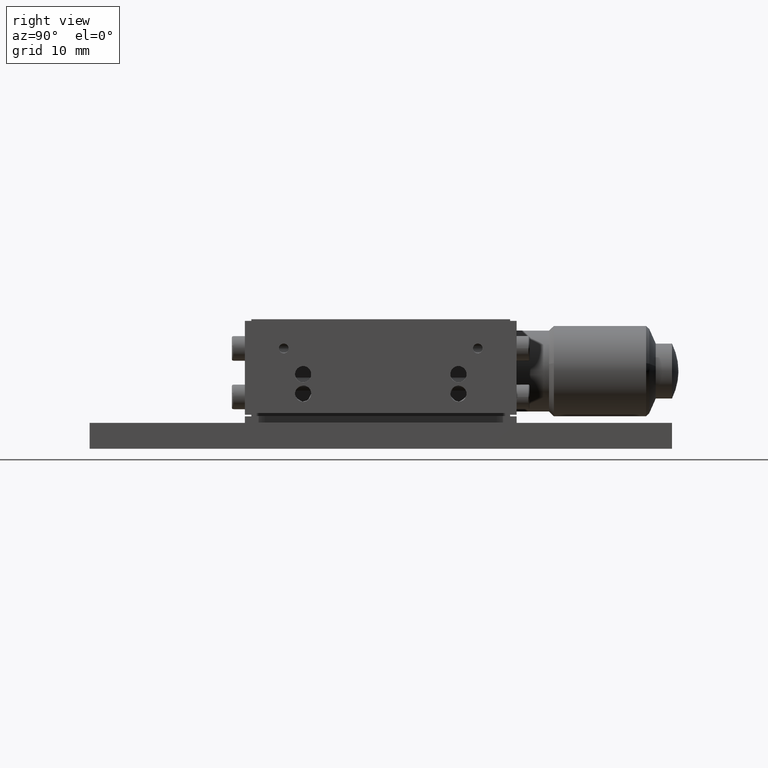
[diagram: clean part render]
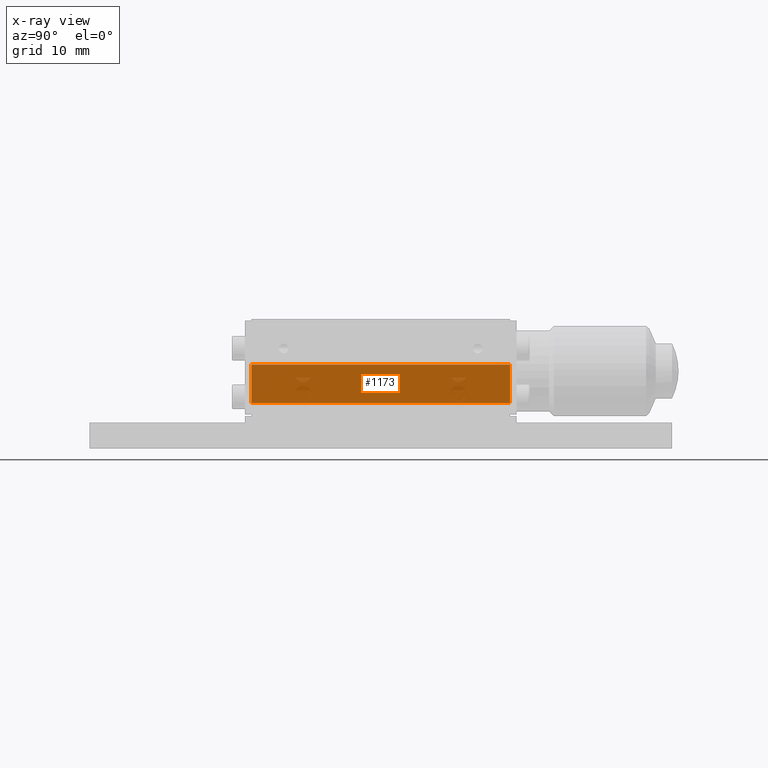
[diagram: x-ray — body ghosted, one internal face saturated and labeled with its STEP entity id]
A machine part, right view, then the same camera in x-ray: the body is ghosted and one INTERNAL B-rep face — a face not visible from any outside direction — is saturated and labeled: STEP entity #1173.
In plain terms, the highlighted face is a freeform B-spline surface patch.
Its self-contained STEP definition (entity closure, byte-faithful):
#329=B_SPLINE_SURFACE_WITH_KNOTS('',1,1,((#33617,#33618),(#33619,#33620)),
 .UNSPECIFIED.,.F.,.F.,.F.,(2,2),(2,2),(-3.52000000000002,0.320000000000002),
(-4.12,44.12),.UNSPECIFIED.);
#338=B_SPLINE_SURFACE_WITH_KNOTS('',1,1,((#34157,#34158),(#34159,#34160)),
 .UNSPECIFIED.,.F.,.F.,.F.,(2,2),(2,2),(-3.42000000000002,0.420000000000002),
(-4.12,44.12),.UNSPECIFIED.);
#339=B_SPLINE_SURFACE_WITH_KNOTS('',1,1,((#34161,#34162),(#34163,#34164)),
 .UNSPECIFIED.,.F.,.F.,.F.,(2,2),(2,2),(-24.12,24.12),(-3.72,3.72),
 .UNSPECIFIED.);
#347=B_SPLINE_SURFACE_WITH_KNOTS('',1,1,((#34193,#34194),(#34195,#34196)),
 .UNSPECIFIED.,.F.,.F.,.F.,(2,2),(2,2),(7.87999999999986,11.7199999999999),
(-3.97000000000008,3.46999999999994),.UNSPECIFIED.);
#378=B_SPLINE_SURFACE_WITH_KNOTS('',1,1,((#35129,#35130),(#35131,#35132)),
 .UNSPECIFIED.,.F.,.F.,.F.,(2,2),(2,2),(-11.72,-7.87999999999998),(-3.97,
3.47),.UNSPECIFIED.);
#1173=ADVANCED_FACE('',(#1794),#339,.T.);
#1794=FACE_OUTER_BOUND('',#2475,.T.);
#2475=EDGE_LOOP('',(#4847,#4848,#4849,#4850));
#4847=ORIENTED_EDGE('',*,*,#18967,.T.);
#4848=ORIENTED_EDGE('',*,*,#18872,.F.);
#4849=ORIENTED_EDGE('',*,*,#18968,.T.);
#4850=ORIENTED_EDGE('',*,*,#18964,.F.);
#7887=PCURVE('',#329,#11117);
#8073=PCURVE('',#338,#11303);
#8077=PCURVE('',#339,#11307);
#8078=PCURVE('',#339,#11308);
#8079=PCURVE('',#339,#11309);
#8080=PCURVE('',#339,#11310);
#8121=PCURVE('',#347,#11351);
#8568=PCURVE('',#378,#11798);
#11117=DEFINITIONAL_REPRESENTATION('',(#14614),#46496);
#11303=DEFINITIONAL_REPRESENTATION('',(#14847),#46496);
#11307=DEFINITIONAL_REPRESENTATION('',(#14854),#46496);
#11308=DEFINITIONAL_REPRESENTATION('',(#14855),#46496);
#11309=DEFINITIONAL_REPRESENTATION('',(#14857),#46496);
#11310=DEFINITIONAL_REPRESENTATION('',(#14858),#46496);
#11351=DEFINITIONAL_REPRESENTATION('',(#14889),#46496);
#11798=DEFINITIONAL_REPRESENTATION('',(#15388),#46496);
#14613=B_SPLINE_CURVE_WITH_KNOTS('',1,(#41302,#41303),.UNSPECIFIED.,.F.,
 .F.,(2,2),(0.,40.),.UNSPECIFIED.);
#14614=B_SPLINE_CURVE_WITH_KNOTS('',1,(#41304,#41305),.UNSPECIFIED.,.F.,
 .F.,(2,2),(0.,40.),.UNSPECIFIED.);
#14846=B_SPLINE_CURVE_WITH_KNOTS('',1,(#42227,#42228),.UNSPECIFIED.,.F.,
 .F.,(2,2),(0.,40.),.UNSPECIFIED.);
#14847=B_SPLINE_CURVE_WITH_KNOTS('',1,(#42229,#42230),.UNSPECIFIED.,.F.,
 .F.,(2,2),(0.,40.),.UNSPECIFIED.);
#14853=B_SPLINE_CURVE_WITH_KNOTS('',1,(#42241,#42242),.UNSPECIFIED.,.F.,
 .F.,(2,2),(-6.,0.),.UNSPECIFIED.);
#14854=B_SPLINE_CURVE_WITH_KNOTS('',1,(#42243,#42244),.UNSPECIFIED.,.F.,
 .F.,(2,2),(-6.,0.),.UNSPECIFIED.);
#14855=B_SPLINE_CURVE_WITH_KNOTS('',1,(#42245,#42246),.UNSPECIFIED.,.F.,
 .F.,(2,2),(0.,40.),.UNSPECIFIED.);
#14856=B_SPLINE_CURVE_WITH_KNOTS('',1,(#42247,#42248),.UNSPECIFIED.,.F.,
 .F.,(2,2),(-6.,0.),.UNSPECIFIED.);
#14857=B_SPLINE_CURVE_WITH_KNOTS('',1,(#42249,#42250),.UNSPECIFIED.,.F.,
 .F.,(2,2),(-6.,0.),.UNSPECIFIED.);
#14858=B_SPLINE_CURVE_WITH_KNOTS('',1,(#42251,#42252),.UNSPECIFIED.,.F.,
 .F.,(2,2),(0.,40.),.UNSPECIFIED.);
#14889=B_SPLINE_CURVE_WITH_KNOTS('',1,(#42394,#42395),.UNSPECIFIED.,.F.,
 .F.,(2,2),(-6.,0.),.UNSPECIFIED.);
#15388=B_SPLINE_CURVE_WITH_KNOTS('',1,(#44436,#44437),.UNSPECIFIED.,.F.,
 .F.,(2,2),(-6.,0.),.UNSPECIFIED.);
#17188=SURFACE_CURVE('',#14613,(#7887,#8078),.PCURVE_S1.);
#17280=SURFACE_CURVE('',#14846,(#8073,#8080),.PCURVE_S1.);
#17283=SURFACE_CURVE('',#14853,(#8077,#8568),.PCURVE_S1.);
#17284=SURFACE_CURVE('',#14856,(#8079,#8121),.PCURVE_S1.);
#18872=EDGE_CURVE('',#21454,#21455,#17188,.T.);
#18964=EDGE_CURVE('',#21508,#21509,#17280,.T.);
#18967=EDGE_CURVE('',#21508,#21455,#17283,.T.);
#18968=EDGE_CURVE('',#21454,#21509,#17284,.T.);
#21454=VERTEX_POINT('',#36625);
#21455=VERTEX_POINT('',#36626);
#21508=VERTEX_POINT('',#36679);
#21509=VERTEX_POINT('',#36680);
#33617=CARTESIAN_POINT('',(-0.420000000000002,24.1946896551723,13.0747069675039));
#33618=CARTESIAN_POINT('',(-0.420000000000002,-24.0453103448278,13.0747069675039));
#33619=CARTESIAN_POINT('',(3.42000000000002,24.1946896551723,13.0747069675039));
#33620=CARTESIAN_POINT('',(3.42000000000002,-24.0453103448278,13.0747069675039));
#34157=CARTESIAN_POINT('',(3.42000000000002,24.1946896551723,7.07470696750392));
#34158=CARTESIAN_POINT('',(3.42000000000002,-24.0453103448278,7.07470696750392));
#34159=CARTESIAN_POINT('',(-0.420000000000002,24.1946896551723,7.07470696750392));
#34160=CARTESIAN_POINT('',(-0.420000000000002,-24.0453103448278,7.07470696750392));
#34161=CARTESIAN_POINT('',(3.00000000000002,24.1946896551723,6.35470696750392));
#34162=CARTESIAN_POINT('',(3.00000000000002,24.1946896551723,13.7947069675039));
#34163=CARTESIAN_POINT('',(3.00000000000002,-24.0453103448278,6.35470696750392));
#34164=CARTESIAN_POINT('',(3.00000000000002,-24.0453103448278,13.7947069675039));
#34193=CARTESIAN_POINT('',(3.42000000000002,20.0746896551723,13.7947069675039));
#34194=CARTESIAN_POINT('',(3.42000000000005,20.0746896551723,6.35470696750392));
#34195=CARTESIAN_POINT('',(-0.420000000000034,20.0746896551723,13.7947069675039));
#34196=CARTESIAN_POINT('',(-0.420000000000003,20.0746896551723,6.3547069675039));
#35129=CARTESIAN_POINT('',(-0.420000000000023,-19.9253103448278,13.7947069675039));
#35130=CARTESIAN_POINT('',(-0.420000000000023,-19.9253103448278,6.35470696750392));
#35131=CARTESIAN_POINT('',(3.42000000000002,-19.9253103448278,13.7947069675039));
#35132=CARTESIAN_POINT('',(3.42000000000002,-19.9253103448278,6.35470696750392));
#36625=CARTESIAN_POINT('',(3.00000000000002,20.0746896551723,13.0747069675039));
#36626=CARTESIAN_POINT('',(3.00000000000002,-19.9253103448278,13.0747069675039));
#36679=CARTESIAN_POINT('',(3.00000000000002,-19.9253103448278,7.07470696750392));
#36680=CARTESIAN_POINT('',(3.00000000000002,20.0746896551723,7.07470696750392));
#41302=CARTESIAN_POINT('',(3.00000000000002,20.0746896551723,13.0747069675039));
#41303=CARTESIAN_POINT('',(3.00000000000002,-19.9253103448278,13.0747069675039));
#41304=CARTESIAN_POINT('',(-0.1,0.));
#41305=CARTESIAN_POINT('',(-0.1,40.));
#42227=CARTESIAN_POINT('',(3.00000000000002,-19.9253103448278,7.07470696750392));
#42228=CARTESIAN_POINT('',(3.00000000000002,20.0746896551723,7.07470696750392));
#42229=CARTESIAN_POINT('',(-3.00000000000002,40.));
#42230=CARTESIAN_POINT('',(-3.00000000000002,1.3337445530845E-31));
#42241=CARTESIAN_POINT('',(3.00000000000002,-19.9253103448278,7.07470696750392));
#42242=CARTESIAN_POINT('',(3.00000000000002,-19.9253103448278,13.0747069675039));
#42243=CARTESIAN_POINT('',(20.,-3.));
#42244=CARTESIAN_POINT('',(20.,3.));
#42245=CARTESIAN_POINT('',(-20.,3.));
#42246=CARTESIAN_POINT('',(20.,3.));
#42247=CARTESIAN_POINT('',(3.00000000000002,20.0746896551723,13.0747069675039));
#42248=CARTESIAN_POINT('',(3.00000000000002,20.0746896551723,7.07470696750392));
#42249=CARTESIAN_POINT('',(-20.,3.));
#42250=CARTESIAN_POINT('',(-20.,-3.));
#42251=CARTESIAN_POINT('',(20.,-3.));
#42252=CARTESIAN_POINT('',(-20.,-3.));
#42394=CARTESIAN_POINT('',(8.29999999999987,-3.25000000000006));
#42395=CARTESIAN_POINT('',(8.29999999999989,2.74999999999994));
#44436=CARTESIAN_POINT('',(-8.29999999999998,2.75));
#44437=CARTESIAN_POINT('',(-8.29999999999998,-3.25));
#46496=(
GEOMETRIC_REPRESENTATION_CONTEXT(2)
PARAMETRIC_REPRESENTATION_CONTEXT()
REPRESENTATION_CONTEXT('pspace','')
);